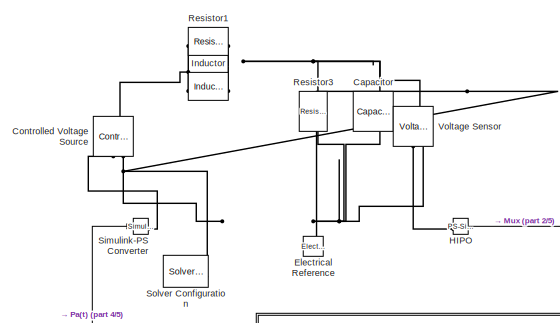
[diagram: root canvas - part 1/5, top left region]
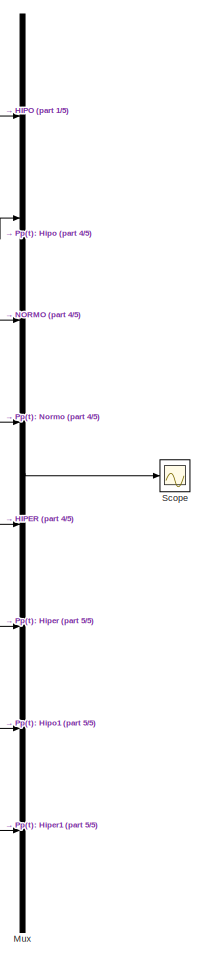
[diagram: root canvas - part 2/5, top right region]
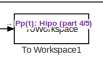
[diagram: root canvas - part 3/5, top right region]
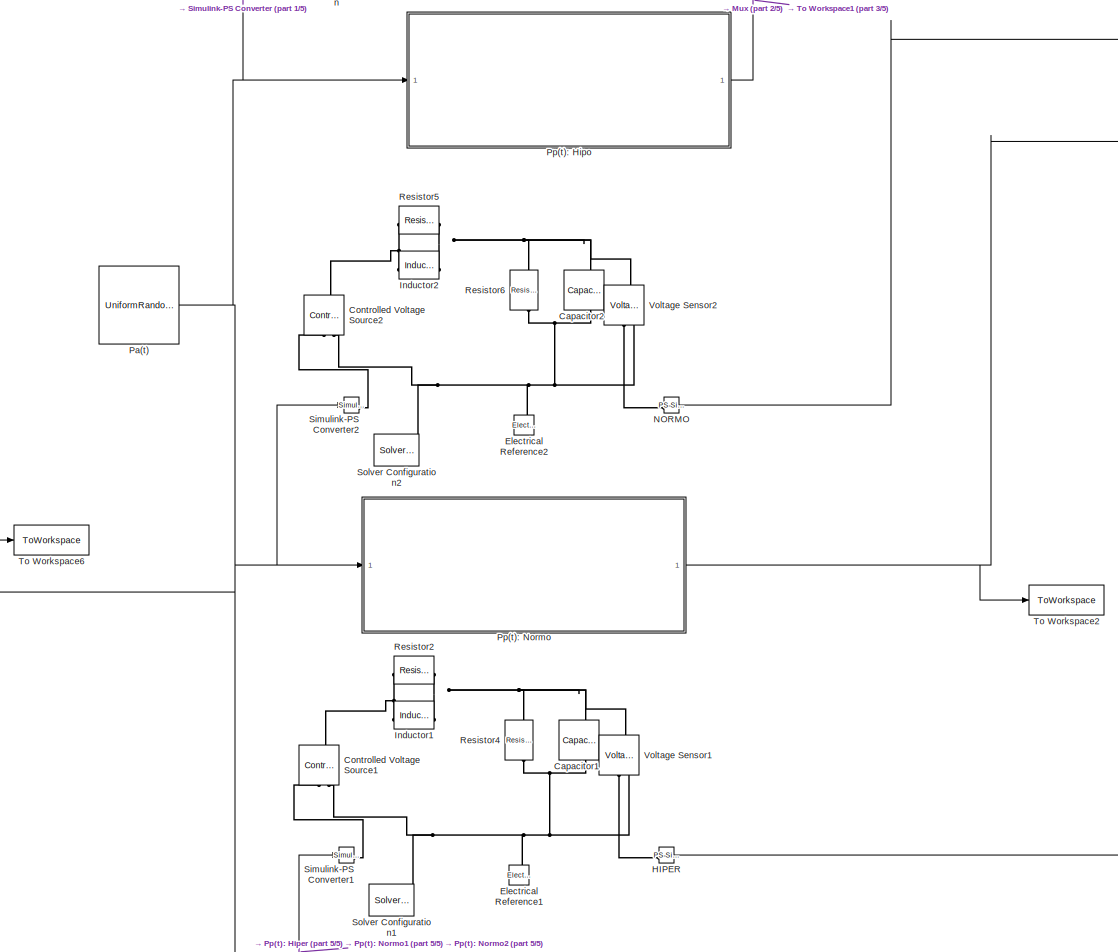
[diagram: root canvas - part 4/5, central region]
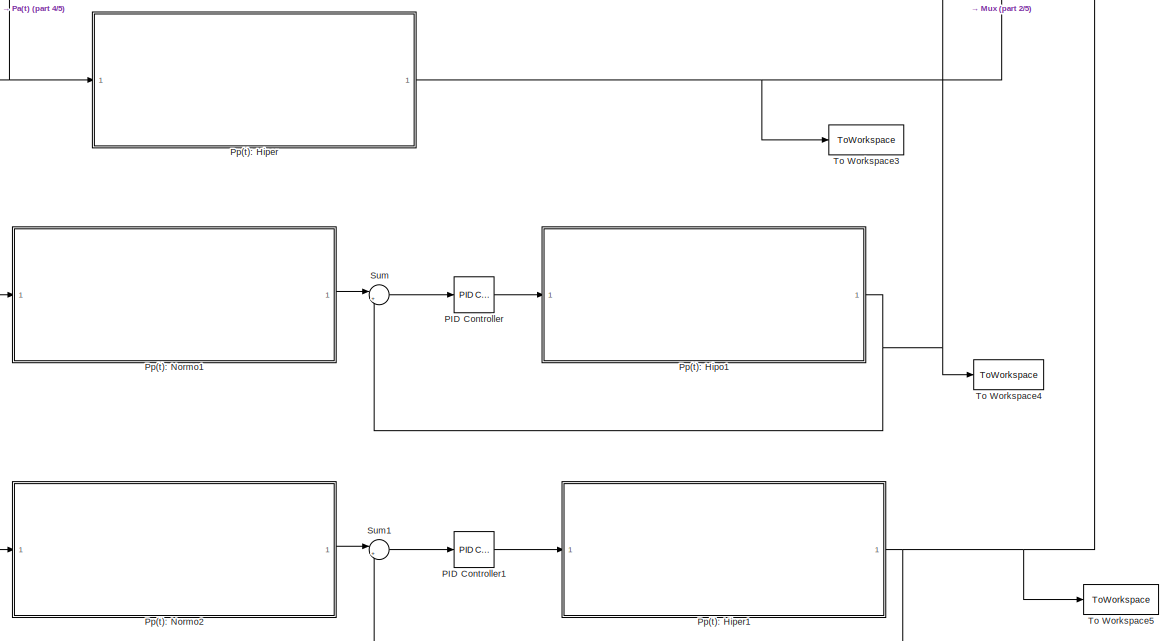
[diagram: root canvas - part 5/5, bottom center region]
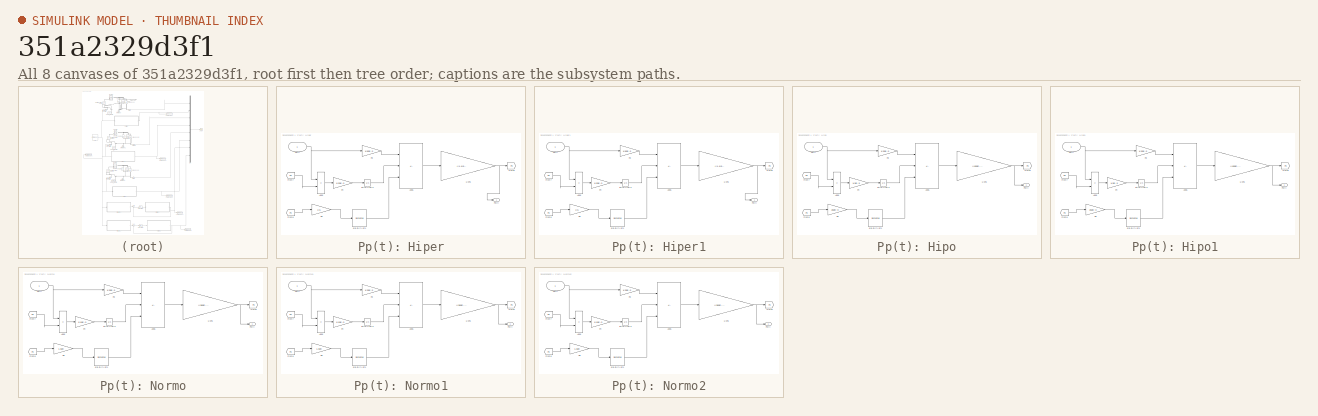
[diagram: thumbnail index - all 8 canvases of the model, root first then tree order]
MODEL slx_351a2329d3f1
KIND model
CONFIG AbsTol = auto
CONFIG EnableMultiTasking = off
CONFIG FixedStep = auto
CONFIG MaxStep = auto
CONFIG MinStep = auto
CONFIG RelTol = 1e-3
CONFIG SampleTimeConstraint = Unconstrained
CONFIG SolverName = ode23t
CONFIG StartTime = 0.0
CONFIG StopTime = 10.0
BLOCK [Reference] Capacitor  REF=fl_lib/Electrical/Electrical Elements/Capacitor
  NameLocation = right
  SourceBlock = fl_lib/Electrical/Electrical Elements/Capacitor
  SourceType = Capacitor
BLOCK [Reference] Capacitor1  REF=fl_lib/Electrical/Electrical Elements/Capacitor
  NameLocation = right
  SourceBlock = fl_lib/Electrical/Electrical Elements/Capacitor
  SourceType = Capacitor
BLOCK [Reference] Capacitor2  REF=fl_lib/Electrical/Electrical Elements/Capacitor
  NameLocation = right
  SourceBlock = fl_lib/Electrical/Electrical Elements/Capacitor
  SourceType = Capacitor
BLOCK [Reference] Controlled Voltage Source  REF=fl_lib/Electrical/Electrical Sources/Controlled Voltage
Source
  NameLocation = right
  SourceBlock = fl_lib/Electrical/Electrical Sources/Controlled Voltage\nSource
  SourceType = Controlled Voltage\nSource
BLOCK [Reference] Controlled Voltage Source1  REF=fl_lib/Electrical/Electrical Sources/Controlled Voltage
Source
  NameLocation = right
  SourceBlock = fl_lib/Electrical/Electrical Sources/Controlled Voltage\nSource
  SourceType = Controlled Voltage\nSource
BLOCK [Reference] Controlled Voltage Source2  REF=fl_lib/Electrical/Electrical Sources/Controlled Voltage
Source
  NameLocation = right
  SourceBlock = fl_lib/Electrical/Electrical Sources/Controlled Voltage\nSource
  SourceType = Controlled Voltage\nSource
BLOCK [Reference] Electrical Reference  REF=fl_lib/Electrical/Electrical Elements/Electrical Reference
  LibrarySourceBlock = ee_lib/Connectors &\nReferences/Electrical Reference
  NameLocation = right
  SourceBlock = fl_lib/Electrical/Electrical Elements/Electrical Reference
  SourceType = Electrical Reference
BLOCK [Reference] Electrical Reference1  REF=fl_lib/Electrical/Electrical Elements/Electrical Reference
  LibrarySourceBlock = ee_lib/Connectors &\nReferences/Electrical Reference
  NameLocation = right
  SourceBlock = fl_lib/Electrical/Electrical Elements/Electrical Reference
  SourceType = Electrical Reference
BLOCK [Reference] Electrical Reference2  REF=fl_lib/Electrical/Electrical Elements/Electrical Reference
  LibrarySourceBlock = ee_lib/Connectors &\nReferences/Electrical Reference
  NameLocation = right
  SourceBlock = fl_lib/Electrical/Electrical Elements/Electrical Reference
  SourceType = Electrical Reference
BLOCK [Reference] HIPER  REF=nesl_utility/PS-Simulink
Converter
  SourceBlock = nesl_utility/PS-Simulink\nConverter
  SourceType = PS-Simulink\nConverter
BLOCK [Reference] HIPO  REF=nesl_utility/PS-Simulink
Converter
  SourceBlock = nesl_utility/PS-Simulink\nConverter
  SourceType = PS-Simulink\nConverter
BLOCK [Reference] Inductor  REF=fl_lib/Electrical/Electrical Elements/Inductor
  NameLocation = top
  SourceBlock = fl_lib/Electrical/Electrical Elements/Inductor
  SourceType = Inductor
BLOCK [Reference] Inductor1  REF=fl_lib/Electrical/Electrical Elements/Inductor
  NameLocation = top
  SourceBlock = fl_lib/Electrical/Electrical Elements/Inductor
  SourceType = Inductor
BLOCK [Reference] Inductor2  REF=fl_lib/Electrical/Electrical Elements/Inductor
  NameLocation = top
  SourceBlock = fl_lib/Electrical/Electrical Elements/Inductor
  SourceType = Inductor
BLOCK [Mux] Mux
  DisplayOption = bar
  Inputs = 8
BLOCK [Reference] NORMO  REF=nesl_utility/PS-Simulink
Converter
  SourceBlock = nesl_utility/PS-Simulink\nConverter
  SourceType = PS-Simulink\nConverter
BLOCK [Reference] PID Controller  REF=slpidlib/PID Controller
  LibrarySourceBlock = simulink/Continuous/PID Controller
  SourceBlock = slpidlib/PID Controller
  SourceType = PID 1dof
BLOCK [Reference] PID Controller1  REF=slpidlib/PID Controller
  LibrarySourceBlock = simulink/Continuous/PID Controller
  SourceBlock = slpidlib/PID Controller
  SourceType = PID 1dof
BLOCK [UniformRandomNumber] Pa(t)
  Minimum = -0.2
  SampleTime = 0.5
  Seed = 106
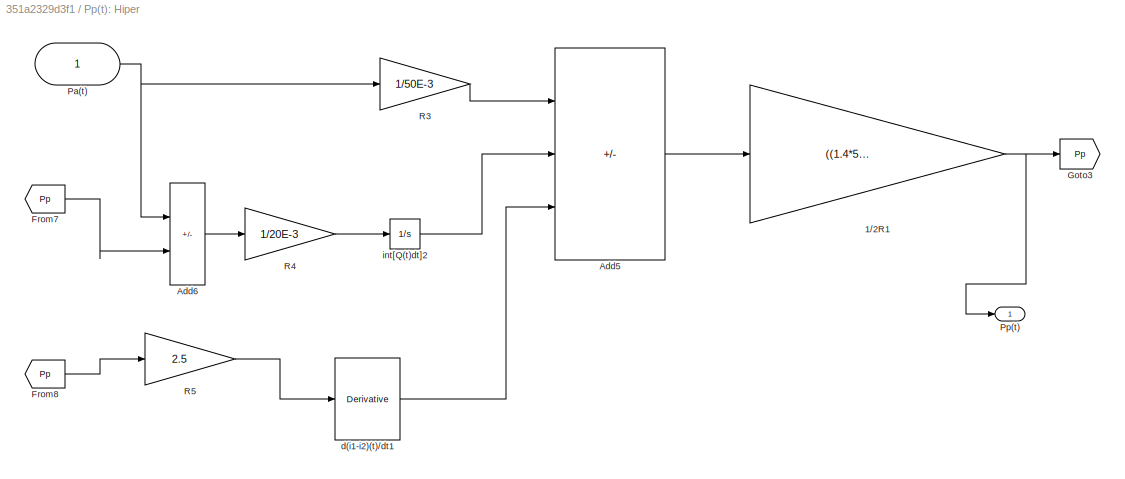
BLOCK [SubSystem] Pp(t): Hiper
BLOCK [Gain] Pp(t): Hiper/1//2R1
  Gain = ((1.4*50E-3)/(50E-3+1.4))
BLOCK [Sum] Pp(t): Hiper/Add5
  IconShape = rectangular
  Inputs = ++-
BLOCK [Sum] Pp(t): Hiper/Add6
  IconShape = rectangular
  Inputs = +-
BLOCK [From] Pp(t): Hiper/From7
  GotoTag = Pp
BLOCK [From] Pp(t): Hiper/From8
  GotoTag = Pp
BLOCK [Goto] Pp(t): Hiper/Goto3
  GotoTag = Pp
BLOCK [Inport] Pp(t): Hiper/Pa(t)
BLOCK [Outport] Pp(t): Hiper/Pp(t)
BLOCK [Gain] Pp(t): Hiper/R3
  Gain = 1/50E-3
BLOCK [Gain] Pp(t): Hiper/R4
  Gain = 1/20E-3
BLOCK [Gain] Pp(t): Hiper/R5
  Gain = 2.5
BLOCK [Derivative] Pp(t): Hiper/d(i1-i2)(t)//dt1
BLOCK [Integrator] Pp(t): Hiper/int[Q(t)dt]2
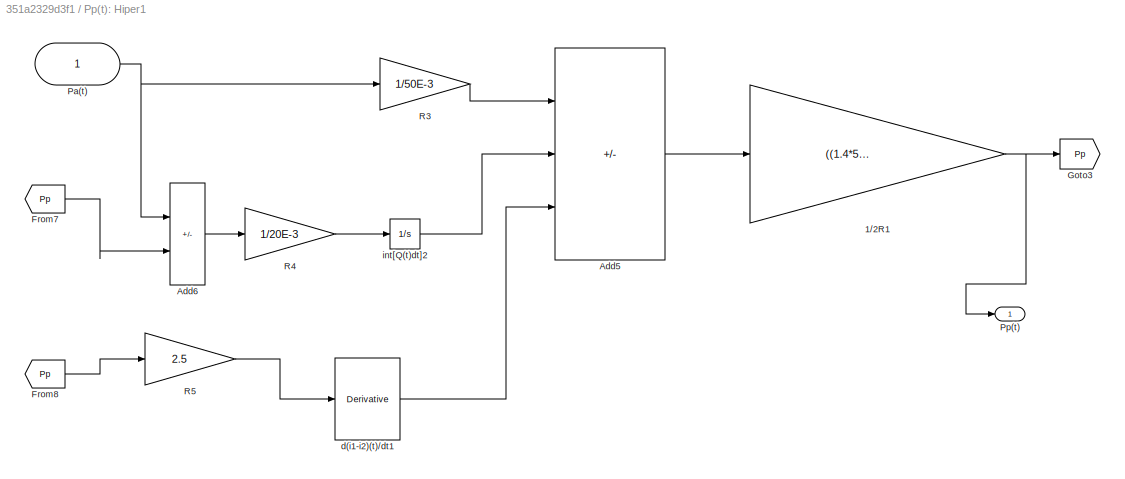
BLOCK [SubSystem] Pp(t): Hiper1
BLOCK [Gain] Pp(t): Hiper1/1//2R1
  Gain = ((1.4*50E-3)/(50E-3+1.4))
BLOCK [Sum] Pp(t): Hiper1/Add5
  IconShape = rectangular
  Inputs = ++-
BLOCK [Sum] Pp(t): Hiper1/Add6
  IconShape = rectangular
  Inputs = +-
BLOCK [From] Pp(t): Hiper1/From7
  GotoTag = Pp
BLOCK [From] Pp(t): Hiper1/From8
  GotoTag = Pp
BLOCK [Goto] Pp(t): Hiper1/Goto3
  GotoTag = Pp
BLOCK [Inport] Pp(t): Hiper1/Pa(t)
BLOCK [Outport] Pp(t): Hiper1/Pp(t)
BLOCK [Gain] Pp(t): Hiper1/R3
  Gain = 1/50E-3
BLOCK [Gain] Pp(t): Hiper1/R4
  Gain = 1/20E-3
BLOCK [Gain] Pp(t): Hiper1/R5
  Gain = 2.5
BLOCK [Derivative] Pp(t): Hiper1/d(i1-i2)(t)//dt1
BLOCK [Integrator] Pp(t): Hiper1/int[Q(t)dt]2
BLOCK [SubSystem] Pp(t): Hipo
BLOCK [Gain] Pp(t): Hipo/1//2R1
  Gain = ((600E-3*20E-3)/(20E-3+600E-3))
BLOCK [Sum] Pp(t): Hipo/Add5
  IconShape = rectangular
  Inputs = ++-
BLOCK [Sum] Pp(t): Hipo/Add6
  IconShape = rectangular
  Inputs = +-
BLOCK [From] Pp(t): Hipo/From7
  GotoTag = Pp
BLOCK [From] Pp(t): Hipo/From8
  GotoTag = Pp
BLOCK [Goto] Pp(t): Hipo/Goto3
  GotoTag = Pp
BLOCK [Inport] Pp(t): Hipo/Pa(t)
BLOCK [Outport] Pp(t): Hipo/Pp(t)
BLOCK [Gain] Pp(t): Hipo/R3
  Gain = 1/20E-3
BLOCK [Gain] Pp(t): Hipo/R4
  Gain = 1/5E-3
BLOCK [Gain] Pp(t): Hipo/R5
  Gain = 250E-3
BLOCK [Derivative] Pp(t): Hipo/d(i1-i2)(t)//dt1
BLOCK [Integrator] Pp(t): Hipo/int[Q(t)dt]2
BLOCK [SubSystem] Pp(t): Hipo1
BLOCK [Gain] Pp(t): Hipo1/1//2R1
  Gain = ((600E-3*20E-3)/(20E-3+600E-3))
BLOCK [Sum] Pp(t): Hipo1/Add5
  IconShape = rectangular
  Inputs = ++-
BLOCK [Sum] Pp(t): Hipo1/Add6
  IconShape = rectangular
  Inputs = +-
BLOCK [From] Pp(t): Hipo1/From7
  GotoTag = Pp
BLOCK [From] Pp(t): Hipo1/From8
  GotoTag = Pp
BLOCK [Goto] Pp(t): Hipo1/Goto3
  GotoTag = Pp
BLOCK [Inport] Pp(t): Hipo1/Pa(t)
BLOCK [Outport] Pp(t): Hipo1/Pp(t)
BLOCK [Gain] Pp(t): Hipo1/R3
  Gain = 1/20E-3
BLOCK [Gain] Pp(t): Hipo1/R4
  Gain = 1/5E-3
BLOCK [Gain] Pp(t): Hipo1/R5
  Gain = 250E-3
BLOCK [Derivative] Pp(t): Hipo1/d(i1-i2)(t)//dt1
BLOCK [Integrator] Pp(t): Hipo1/int[Q(t)dt]2
BLOCK [SubSystem] Pp(t): Normo
BLOCK [Gain] Pp(t): Normo/1//2R1
  Gain = ((950E-3*33E-3)/(33E-3+950E-3))
BLOCK [Sum] Pp(t): Normo/Add5
  IconShape = rectangular
  Inputs = ++-
BLOCK [Sum] Pp(t): Normo/Add6
  IconShape = rectangular
  Inputs = +-
BLOCK [From] Pp(t): Normo/From7
  GotoTag = Pp
BLOCK [From] Pp(t): Normo/From8
  GotoTag = Pp
BLOCK [Goto] Pp(t): Normo/Goto3
  GotoTag = Pp
BLOCK [Inport] Pp(t): Normo/Pa(t)
BLOCK [Outport] Pp(t): Normo/Pp(t)
BLOCK [Gain] Pp(t): Normo/R3
  Gain = 1/33E-3
BLOCK [Gain] Pp(t): Normo/R4
  Gain = 1/10E-3
BLOCK [Gain] Pp(t): Normo/R5
  Gain = 1.500
BLOCK [Derivative] Pp(t): Normo/d(i1-i2)(t)//dt1
BLOCK [Integrator] Pp(t): Normo/int[Q(t)dt]2
BLOCK [SubSystem] Pp(t): Normo1
BLOCK [Gain] Pp(t): Normo1/1//2R1
  Gain = ((950E-3*33E-3)/(33E-3+950E-3))
BLOCK [Sum] Pp(t): Normo1/Add5
  IconShape = rectangular
  Inputs = ++-
BLOCK [Sum] Pp(t): Normo1/Add6
  IconShape = rectangular
  Inputs = +-
BLOCK [From] Pp(t): Normo1/From7
  GotoTag = Pp
BLOCK [From] Pp(t): Normo1/From8
  GotoTag = Pp
BLOCK [Goto] Pp(t): Normo1/Goto3
  GotoTag = Pp
BLOCK [Inport] Pp(t): Normo1/Pa(t)
BLOCK [Outport] Pp(t): Normo1/Pp(t)
BLOCK [Gain] Pp(t): Normo1/R3
  Gain = 1/33E-3
BLOCK [Gain] Pp(t): Normo1/R4
  Gain = 1/10E-3
BLOCK [Gain] Pp(t): Normo1/R5
  Gain = 1.500
BLOCK [Derivative] Pp(t): Normo1/d(i1-i2)(t)//dt1
BLOCK [Integrator] Pp(t): Normo1/int[Q(t)dt]2
BLOCK [SubSystem] Pp(t): Normo2
BLOCK [Gain] Pp(t): Normo2/1//2R1
  Gain = ((950E-3*33E-3)/(33E-3+950E-3))
BLOCK [Sum] Pp(t): Normo2/Add5
  IconShape = rectangular
  Inputs = ++-
BLOCK [Sum] Pp(t): Normo2/Add6
  IconShape = rectangular
  Inputs = +-
BLOCK [From] Pp(t): Normo2/From7
  GotoTag = Pp
BLOCK [From] Pp(t): Normo2/From8
  GotoTag = Pp
BLOCK [Goto] Pp(t): Normo2/Goto3
  GotoTag = Pp
BLOCK [Inport] Pp(t): Normo2/Pa(t)
BLOCK [Outport] Pp(t): Normo2/Pp(t)
BLOCK [Gain] Pp(t): Normo2/R3
  Gain = 1/33E-3
BLOCK [Gain] Pp(t): Normo2/R4
  Gain = 1/10E-3
BLOCK [Gain] Pp(t): Normo2/R5
  Gain = 1.500
BLOCK [Derivative] Pp(t): Normo2/d(i1-i2)(t)//dt1
BLOCK [Integrator] Pp(t): Normo2/int[Q(t)dt]2
BLOCK [Reference] Resistor1  REF=fl_lib/Electrical/Electrical Elements/Resistor
  SourceBlock = fl_lib/Electrical/Electrical Elements/Resistor
  SourceType = Resistor
BLOCK [Reference] Resistor2  REF=fl_lib/Electrical/Electrical Elements/Resistor
  SourceBlock = fl_lib/Electrical/Electrical Elements/Resistor
  SourceType = Resistor
BLOCK [Reference] Resistor3  REF=fl_lib/Electrical/Electrical Elements/Resistor
  NameLocation = left
  SourceBlock = fl_lib/Electrical/Electrical Elements/Resistor
  SourceType = Resistor
BLOCK [Reference] Resistor4  REF=fl_lib/Electrical/Electrical Elements/Resistor
  NameLocation = left
  SourceBlock = fl_lib/Electrical/Electrical Elements/Resistor
  SourceType = Resistor
BLOCK [Reference] Resistor5  REF=fl_lib/Electrical/Electrical Elements/Resistor
  SourceBlock = fl_lib/Electrical/Electrical Elements/Resistor
  SourceType = Resistor
BLOCK [Reference] Resistor6  REF=fl_lib/Electrical/Electrical Elements/Resistor
  NameLocation = left
  SourceBlock = fl_lib/Electrical/Electrical Elements/Resistor
  SourceType = Resistor
BLOCK [Scope] Scope
  ActiveDisplayYMaximum = 1.2297907338974534
  ActiveDisplayYMinimum = -0.32157829431311108
  ContainerLayout = {"WindowBounds":[1,1522,1355,607]}
  Floating = off
  GraphicalSettings = {"Style":{"BackgroundColor":[1,1,1],"AxesColor":[1,1,1],"LabelsColor":[0,0,0],"PreserveColors":false,"Visible":[true,true,true,true,true,true,true,true],"LineStyle":["-","-","-","-","-","-","-.","-."],"LineWidth":[2,1.5,2,1.5,2,1.5,3,3],"BarWidth":[0.9,0.9,0.9,0.9,0.9,0.9,0.9,0.9],"LineColor":[[0.06666666666666667,0.44313725490196076,0.7450980392156863],[0.8666666666666667,0.32941176470588235,0],[...<+2772ch>
  MultipleDisplayCache = [{"MaxYLimMag":1.2297907338974534,"MaxYLimReal":1.2297907338974534,"MinYLimMag":0,"MinYLimReal":-0.32157829431311108,"PlotAsMagnitudePhase":false,"ShowGrid":true,"ShowLegend":true,"Title":"%<SignalLabel>","YLabel":""}]
  NumInputPorts = 1
  ShowLegend = on
  Visible = on
  WasSavedAsWebScope = on
  WindowPosition = [1.000000,1.000000,1494.000000,677.000000,]
BLOCK [Reference] Simulink-PS Converter  REF=nesl_utility/Simulink-PS
Converter
  SourceBlock = nesl_utility/Simulink-PS\nConverter
  SourceType = Simulink-PS\nConverter
BLOCK [Reference] Simulink-PS Converter1  REF=nesl_utility/Simulink-PS
Converter
  SourceBlock = nesl_utility/Simulink-PS\nConverter
  SourceType = Simulink-PS\nConverter
BLOCK [Reference] Simulink-PS Converter2  REF=nesl_utility/Simulink-PS
Converter
  SourceBlock = nesl_utility/Simulink-PS\nConverter
  SourceType = Simulink-PS\nConverter
BLOCK [Reference] Solver Configuration  REF=nesl_utility/Solver
Configuration
  SourceBlock = nesl_utility/Solver\nConfiguration
  SourceType = Solver\nConfiguration
BLOCK [Reference] Solver Configuration1  REF=nesl_utility/Solver
Configuration
  SourceBlock = nesl_utility/Solver\nConfiguration
  SourceType = Solver\nConfiguration
BLOCK [Reference] Solver Configuration2  REF=nesl_utility/Solver
Configuration
  SourceBlock = nesl_utility/Solver\nConfiguration
  SourceType = Solver\nConfiguration
BLOCK [Sum] Sum
  Inputs = |+-
BLOCK [Sum] Sum1
  Inputs = |+-
BLOCK [ToWorkspace] To Workspace1
  FixptAsFi = on
  MaxDataPoints = inf
  SampleTime = -1
  VariableName = Pp1
BLOCK [ToWorkspace] To Workspace2
  FixptAsFi = on
  MaxDataPoints = inf
  SampleTime = -1
  VariableName = Pp0
BLOCK [ToWorkspace] To Workspace3
  FixptAsFi = on
  MaxDataPoints = inf
  SampleTime = -1
  VariableName = Pp2
BLOCK [ToWorkspace] To Workspace4
  FixptAsFi = on
  MaxDataPoints = inf
  SampleTime = -1
  VariableName = Pp3
BLOCK [ToWorkspace] To Workspace5
  FixptAsFi = on
  MaxDataPoints = inf
  SampleTime = -1
  VariableName = Pp4
BLOCK [ToWorkspace] To Workspace6
  FixptAsFi = on
  MaxDataPoints = inf
  SampleTime = -1
  VariableName = Pa
BLOCK [Reference] Voltage Sensor  REF=fl_lib/Electrical/Electrical Sensors/Voltage Sensor
  NameLocation = right
  SourceBlock = fl_lib/Electrical/Electrical Sensors/Voltage Sensor
  SourceType = Voltage Sensor
BLOCK [Reference] Voltage Sensor1  REF=fl_lib/Electrical/Electrical Sensors/Voltage Sensor
  NameLocation = right
  SourceBlock = fl_lib/Electrical/Electrical Sensors/Voltage Sensor
  SourceType = Voltage Sensor
BLOCK [Reference] Voltage Sensor2  REF=fl_lib/Electrical/Electrical Sensors/Voltage Sensor
  NameLocation = right
  SourceBlock = fl_lib/Electrical/Electrical Sensors/Voltage Sensor
  SourceType = Voltage Sensor
LINE HIPER:1 -> Mux:5
LINE HIPO:1 -> Mux:1
LINE Mux:1 -> Scope:1
LINE NORMO:1 -> Mux:3
LINE PID Controller1:1 -> Pp(t): Hiper1:1
LINE PID Controller:1 -> Pp(t): Hipo1:1
NET Pa(t):1 -> Pp(t): Hiper:1, Pp(t): Hipo:1, Pp(t): Normo1:1, Pp(t): Normo2:1, Pp(t): Normo:1, Simulink-PS Converter1:1, Simulink-PS Converter2:1, Simulink-PS Converter:1, To Workspace6:1
NET Pp(t): Hiper/1//2R1:1 -> Pp(t): Hiper/Goto3:1, Pp(t): Hiper/Pp(t):1
LINE Pp(t): Hiper/Add5:1 -> Pp(t): Hiper/1//2R1:1
LINE Pp(t): Hiper/Add6:1 -> Pp(t): Hiper/R4:1
LINE Pp(t): Hiper/From7:1 -> Pp(t): Hiper/Add6:2
LINE Pp(t): Hiper/From8:1 -> Pp(t): Hiper/R5:1
NET Pp(t): Hiper/Pa(t):1 -> Pp(t): Hiper/Add6:1, Pp(t): Hiper/R3:1
LINE Pp(t): Hiper/R3:1 -> Pp(t): Hiper/Add5:1
LINE Pp(t): Hiper/R4:1 -> Pp(t): Hiper/int[Q(t)dt]2:1
LINE Pp(t): Hiper/R5:1 -> Pp(t): Hiper/d(i1-i2)(t)//dt1:1
LINE Pp(t): Hiper/d(i1-i2)(t)//dt1:1 -> Pp(t): Hiper/Add5:3
LINE Pp(t): Hiper/int[Q(t)dt]2:1 -> Pp(t): Hiper/Add5:2
NET Pp(t): Hiper1/1//2R1:1 -> Pp(t): Hiper1/Goto3:1, Pp(t): Hiper1/Pp(t):1
LINE Pp(t): Hiper1/Add5:1 -> Pp(t): Hiper1/1//2R1:1
LINE Pp(t): Hiper1/Add6:1 -> Pp(t): Hiper1/R4:1
LINE Pp(t): Hiper1/From7:1 -> Pp(t): Hiper1/Add6:2
LINE Pp(t): Hiper1/From8:1 -> Pp(t): Hiper1/R5:1
NET Pp(t): Hiper1/Pa(t):1 -> Pp(t): Hiper1/Add6:1, Pp(t): Hiper1/R3:1
LINE Pp(t): Hiper1/R3:1 -> Pp(t): Hiper1/Add5:1
LINE Pp(t): Hiper1/R4:1 -> Pp(t): Hiper1/int[Q(t)dt]2:1
LINE Pp(t): Hiper1/R5:1 -> Pp(t): Hiper1/d(i1-i2)(t)//dt1:1
LINE Pp(t): Hiper1/d(i1-i2)(t)//dt1:1 -> Pp(t): Hiper1/Add5:3
LINE Pp(t): Hiper1/int[Q(t)dt]2:1 -> Pp(t): Hiper1/Add5:2
NET Pp(t): Hiper1:1 -> Mux:8, Sum1:2, To Workspace5:1
NET Pp(t): Hiper:1 -> Mux:6, To Workspace3:1
NET Pp(t): Hipo/1//2R1:1 -> Pp(t): Hipo/Goto3:1, Pp(t): Hipo/Pp(t):1
LINE Pp(t): Hipo/Add5:1 -> Pp(t): Hipo/1//2R1:1
LINE Pp(t): Hipo/Add6:1 -> Pp(t): Hipo/R4:1
LINE Pp(t): Hipo/From7:1 -> Pp(t): Hipo/Add6:2
LINE Pp(t): Hipo/From8:1 -> Pp(t): Hipo/R5:1
NET Pp(t): Hipo/Pa(t):1 -> Pp(t): Hipo/Add6:1, Pp(t): Hipo/R3:1
LINE Pp(t): Hipo/R3:1 -> Pp(t): Hipo/Add5:1
LINE Pp(t): Hipo/R4:1 -> Pp(t): Hipo/int[Q(t)dt]2:1
LINE Pp(t): Hipo/R5:1 -> Pp(t): Hipo/d(i1-i2)(t)//dt1:1
LINE Pp(t): Hipo/d(i1-i2)(t)//dt1:1 -> Pp(t): Hipo/Add5:3
LINE Pp(t): Hipo/int[Q(t)dt]2:1 -> Pp(t): Hipo/Add5:2
NET Pp(t): Hipo1/1//2R1:1 -> Pp(t): Hipo1/Goto3:1, Pp(t): Hipo1/Pp(t):1
LINE Pp(t): Hipo1/Add5:1 -> Pp(t): Hipo1/1//2R1:1
LINE Pp(t): Hipo1/Add6:1 -> Pp(t): Hipo1/R4:1
LINE Pp(t): Hipo1/From7:1 -> Pp(t): Hipo1/Add6:2
LINE Pp(t): Hipo1/From8:1 -> Pp(t): Hipo1/R5:1
NET Pp(t): Hipo1/Pa(t):1 -> Pp(t): Hipo1/Add6:1, Pp(t): Hipo1/R3:1
LINE Pp(t): Hipo1/R3:1 -> Pp(t): Hipo1/Add5:1
LINE Pp(t): Hipo1/R4:1 -> Pp(t): Hipo1/int[Q(t)dt]2:1
LINE Pp(t): Hipo1/R5:1 -> Pp(t): Hipo1/d(i1-i2)(t)//dt1:1
LINE Pp(t): Hipo1/d(i1-i2)(t)//dt1:1 -> Pp(t): Hipo1/Add5:3
LINE Pp(t): Hipo1/int[Q(t)dt]2:1 -> Pp(t): Hipo1/Add5:2
NET Pp(t): Hipo1:1 -> Mux:7, Sum:2, To Workspace4:1
NET Pp(t): Hipo:1 -> Mux:2, To Workspace1:1
NET Pp(t): Normo/1//2R1:1 -> Pp(t): Normo/Goto3:1, Pp(t): Normo/Pp(t):1
LINE Pp(t): Normo/Add5:1 -> Pp(t): Normo/1//2R1:1
LINE Pp(t): Normo/Add6:1 -> Pp(t): Normo/R4:1
LINE Pp(t): Normo/From7:1 -> Pp(t): Normo/Add6:2
LINE Pp(t): Normo/From8:1 -> Pp(t): Normo/R5:1
NET Pp(t): Normo/Pa(t):1 -> Pp(t): Normo/Add6:1, Pp(t): Normo/R3:1
LINE Pp(t): Normo/R3:1 -> Pp(t): Normo/Add5:1
LINE Pp(t): Normo/R4:1 -> Pp(t): Normo/int[Q(t)dt]2:1
LINE Pp(t): Normo/R5:1 -> Pp(t): Normo/d(i1-i2)(t)//dt1:1
LINE Pp(t): Normo/d(i1-i2)(t)//dt1:1 -> Pp(t): Normo/Add5:3
LINE Pp(t): Normo/int[Q(t)dt]2:1 -> Pp(t): Normo/Add5:2
NET Pp(t): Normo1/1//2R1:1 -> Pp(t): Normo1/Goto3:1, Pp(t): Normo1/Pp(t):1
LINE Pp(t): Normo1/Add5:1 -> Pp(t): Normo1/1//2R1:1
LINE Pp(t): Normo1/Add6:1 -> Pp(t): Normo1/R4:1
LINE Pp(t): Normo1/From7:1 -> Pp(t): Normo1/Add6:2
LINE Pp(t): Normo1/From8:1 -> Pp(t): Normo1/R5:1
NET Pp(t): Normo1/Pa(t):1 -> Pp(t): Normo1/Add6:1, Pp(t): Normo1/R3:1
LINE Pp(t): Normo1/R3:1 -> Pp(t): Normo1/Add5:1
LINE Pp(t): Normo1/R4:1 -> Pp(t): Normo1/int[Q(t)dt]2:1
LINE Pp(t): Normo1/R5:1 -> Pp(t): Normo1/d(i1-i2)(t)//dt1:1
LINE Pp(t): Normo1/d(i1-i2)(t)//dt1:1 -> Pp(t): Normo1/Add5:3
LINE Pp(t): Normo1/int[Q(t)dt]2:1 -> Pp(t): Normo1/Add5:2
LINE Pp(t): Normo1:1 -> Sum:1
NET Pp(t): Normo2/1//2R1:1 -> Pp(t): Normo2/Goto3:1, Pp(t): Normo2/Pp(t):1
LINE Pp(t): Normo2/Add5:1 -> Pp(t): Normo2/1//2R1:1
LINE Pp(t): Normo2/Add6:1 -> Pp(t): Normo2/R4:1
LINE Pp(t): Normo2/From7:1 -> Pp(t): Normo2/Add6:2
LINE Pp(t): Normo2/From8:1 -> Pp(t): Normo2/R5:1
NET Pp(t): Normo2/Pa(t):1 -> Pp(t): Normo2/Add6:1, Pp(t): Normo2/R3:1
LINE Pp(t): Normo2/R3:1 -> Pp(t): Normo2/Add5:1
LINE Pp(t): Normo2/R4:1 -> Pp(t): Normo2/int[Q(t)dt]2:1
LINE Pp(t): Normo2/R5:1 -> Pp(t): Normo2/d(i1-i2)(t)//dt1:1
LINE Pp(t): Normo2/d(i1-i2)(t)//dt1:1 -> Pp(t): Normo2/Add5:3
LINE Pp(t): Normo2/int[Q(t)dt]2:1 -> Pp(t): Normo2/Add5:2
LINE Pp(t): Normo2:1 -> Sum1:1
NET Pp(t): Normo:1 -> Mux:4, To Workspace2:1
LINE Sum1:1 -> PID Controller1:1
LINE Sum:1 -> PID Controller:1
PNET net1: Capacitor1:LConn1 -- Controlled Voltage Source1:RConn2 -- Electrical Reference1:LConn1 -- Resistor4:RConn1 -- Solver Configuration1:RConn1 -- Voltage Sensor1:RConn2
PNET net2: Capacitor1:RConn1 -- Inductor1:LConn1 -- Resistor2:RConn1 -- Resistor4:LConn1 -- Voltage Sensor1:LConn1
PNET net3: Capacitor2:LConn1 -- Controlled Voltage Source2:RConn2 -- Electrical Reference2:LConn1 -- Resistor6:RConn1 -- Solver Configuration2:RConn1 -- Voltage Sensor2:RConn2
PNET net4: Capacitor2:RConn1 -- Inductor2:LConn1 -- Resistor5:RConn1 -- Resistor6:LConn1 -- Voltage Sensor2:LConn1
PNET net5: Capacitor:LConn1 -- Controlled Voltage Source:RConn2 -- Electrical Reference:LConn1 -- Resistor3:RConn1 -- Solver Configuration:RConn1 -- Voltage Sensor:RConn2
PNET net6: Capacitor:RConn1 -- Inductor:LConn1 -- Resistor1:RConn1 -- Resistor3:LConn1 -- Voltage Sensor:LConn1
PNET net7: Controlled Voltage Source1:LConn1 -- Inductor1:RConn1 -- Resistor2:LConn1
PLINE Controlled Voltage Source1:RConn1 -- Simulink-PS Converter1:RConn1
PNET net8: Controlled Voltage Source2:LConn1 -- Inductor2:RConn1 -- Resistor5:LConn1
PLINE Controlled Voltage Source2:RConn1 -- Simulink-PS Converter2:RConn1
PNET net9: Controlled Voltage Source:LConn1 -- Inductor:RConn1 -- Resistor1:LConn1
PLINE Controlled Voltage Source:RConn1 -- Simulink-PS Converter:RConn1
PLINE HIPER:LConn1 -- Voltage Sensor1:RConn1
PLINE HIPO:LConn1 -- Voltage Sensor:RConn1
PLINE NORMO:LConn1 -- Voltage Sensor2:RConn1
note: NET lines group one-source signal fan-out (src -> all destinations, sorted); 1:1 wires keep LINE; PNET lines group multi-terminal physical nets as a canonical sorted terminal list (undirected conserving connections); 2-terminal nets keep the pairwise PLINE form
